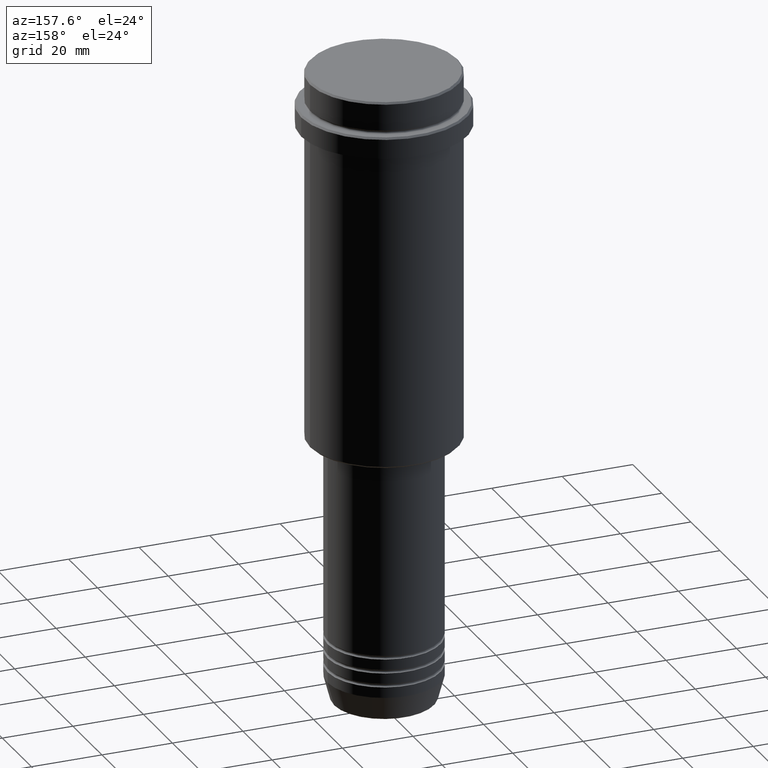
[diagram: clean part render]
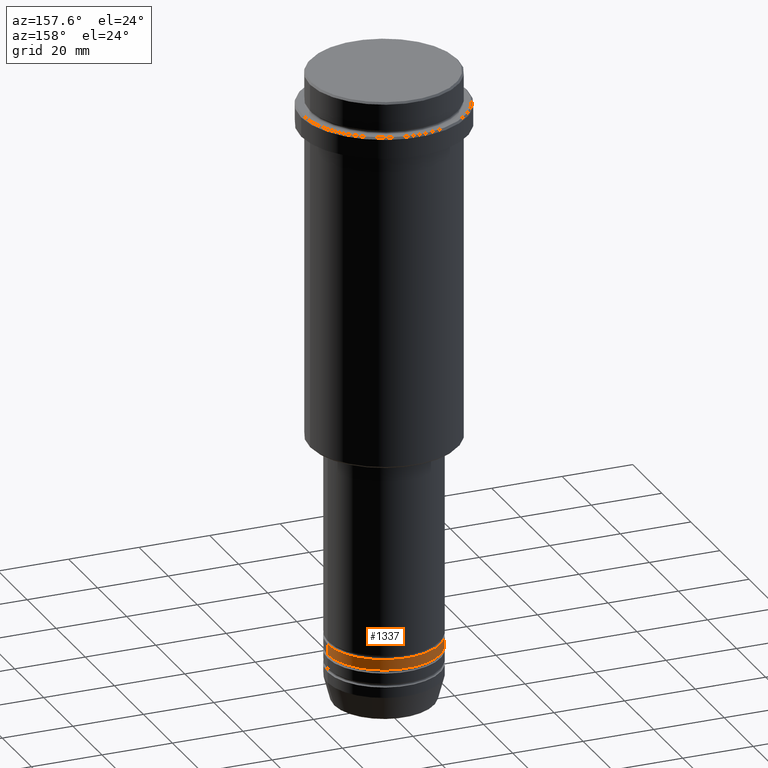
[diagram: same view with one face highlighted and labeled with its STEP entity id]
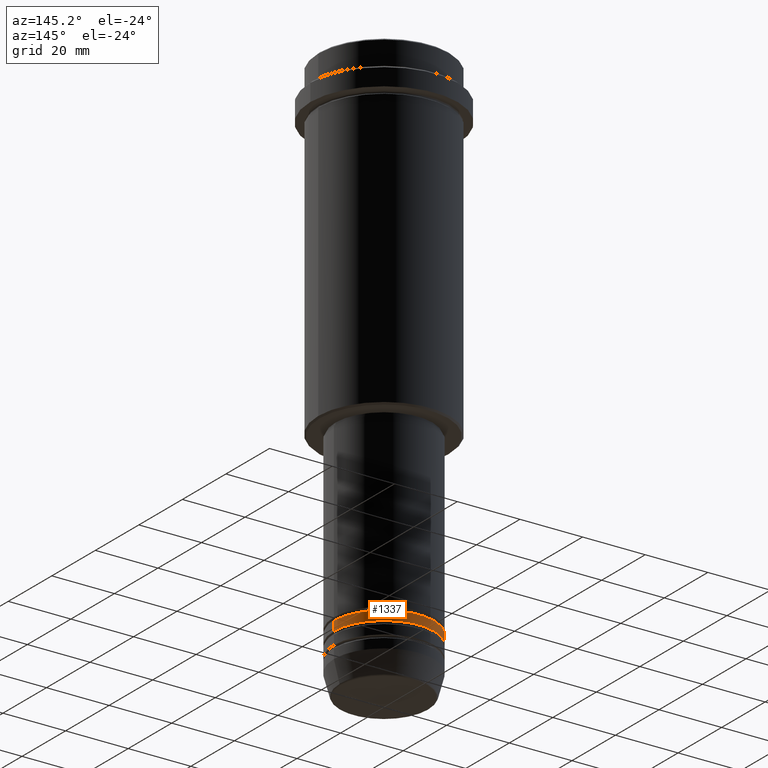
[diagram: same view with one face highlighted and labeled with its STEP entity id]
A machine part, auxiliary view. The second image highlights one B-rep face of the part: STEP entity #1337.
A second angle (auxiliary view) of the same face is appended — the face is thin or edge-on in the first view.
In plain terms, the highlighted cylindrical surface (partial cylindrical patch) has radius 16 mm, axis along (-0, -0, 1).
Its self-contained STEP definition (entity closure, byte-faithful):
#54 = ORIENTED_EDGE ( 'NONE', *, *, #961, .F. ) ;
#57 = CARTESIAN_POINT ( 'NONE',  ( -16.00000000000000000, 1.959434878635765131E-15, -164.9999999999999147 ) ) ;
#71 = VECTOR ( 'NONE', #535, 1000.000000000000000 ) ;
#96 = AXIS2_PLACEMENT_3D ( 'NONE', #287, #183, #844 ) ;
#112 = ORIENTED_EDGE ( 'NONE', *, *, #1380, .T. ) ;
#165 = AXIS2_PLACEMENT_3D ( 'NONE', #1144, #1256, #365 ) ;
#166 = DIRECTION ( 'NONE',  ( 1.000000000000000000, 0.000000000000000000, 0.000000000000000000 ) ) ;
#178 = CARTESIAN_POINT ( 'NONE',  ( -16.00000000000000000, 1.959434878635765131E-15, -161.9999999999999147 ) ) ;
#183 = DIRECTION ( 'NONE',  ( -0.000000000000000000, -0.000000000000000000, 1.000000000000000000 ) ) ;
#287 = CARTESIAN_POINT ( 'NONE',  ( 0.000000000000000000, 0.000000000000000000, -164.9999999999999147 ) ) ;
#332 = EDGE_CURVE ( 'NONE', #982, #1128, #783, .T. ) ;
#365 = DIRECTION ( 'NONE',  ( 1.000000000000000000, 0.000000000000000000, 0.000000000000000000 ) ) ;
#377 = FACE_OUTER_BOUND ( 'NONE', #1023, .T. ) ;
#383 = DIRECTION ( 'NONE',  ( -0.000000000000000000, -0.000000000000000000, 1.000000000000000000 ) ) ;
#486 = CIRCLE ( 'NONE', #165, 16.00000000000000000 ) ;
#524 = EDGE_CURVE ( 'NONE', #982, #630, #1358, .T. ) ;
#535 = DIRECTION ( 'NONE',  ( -0.000000000000000000, -0.000000000000000000, 1.000000000000000000 ) ) ;
#538 = ORIENTED_EDGE ( 'NONE', *, *, #332, .F. ) ;
#575 = DIRECTION ( 'NONE',  ( -0.000000000000000000, -0.000000000000000000, 1.000000000000000000 ) ) ;
#582 = CARTESIAN_POINT ( 'NONE',  ( 0.000000000000000000, 0.000000000000000000, 0.000000000000000000 ) ) ;
#630 = VERTEX_POINT ( 'NONE', #57 ) ;
#673 = ORIENTED_EDGE ( 'NONE', *, *, #524, .T. ) ;
#783 = LINE ( 'NONE', #1319, #71 ) ;
#790 = CYLINDRICAL_SURFACE ( 'NONE', #1107, 16.00000000000000000 ) ;
#844 = DIRECTION ( 'NONE',  ( 1.000000000000000000, 0.000000000000000000, 0.000000000000000000 ) ) ;
#961 = EDGE_CURVE ( 'NONE', #1128, #1102, #486, .T. ) ;
#982 = VERTEX_POINT ( 'NONE', #1230 ) ;
#1023 = EDGE_LOOP ( 'NONE', ( #673, #112, #54, #538 ) ) ;
#1102 = VERTEX_POINT ( 'NONE', #178 ) ;
#1107 = AXIS2_PLACEMENT_3D ( 'NONE', #582, #575, #166 ) ;
#1128 = VERTEX_POINT ( 'NONE', #1187 ) ;
#1144 = CARTESIAN_POINT ( 'NONE',  ( 0.000000000000000000, 0.000000000000000000, -161.9999999999999147 ) ) ;
#1187 = CARTESIAN_POINT ( 'NONE',  ( 16.00000000000000000, 0.000000000000000000, -161.9999999999999147 ) ) ;
#1199 = VECTOR ( 'NONE', #383, 1000.000000000000000 ) ;
#1230 = CARTESIAN_POINT ( 'NONE',  ( 16.00000000000000000, 0.000000000000000000, -164.9999999999999147 ) ) ;
#1245 = CARTESIAN_POINT ( 'NONE',  ( -16.00000000000000000, 1.959434878635765131E-15, 0.000000000000000000 ) ) ;
#1256 = DIRECTION ( 'NONE',  ( -0.000000000000000000, -0.000000000000000000, 1.000000000000000000 ) ) ;
#1319 = CARTESIAN_POINT ( 'NONE',  ( 16.00000000000000000, 0.000000000000000000, 0.000000000000000000 ) ) ;
#1337 = ADVANCED_FACE ( 'NONE', ( #377 ), #790, .T. ) ;
#1358 = CIRCLE ( 'NONE', #96, 16.00000000000000000 ) ;
#1370 = LINE ( 'NONE', #1245, #1199 ) ;
#1380 = EDGE_CURVE ( 'NONE', #630, #1102, #1370, .T. ) ;